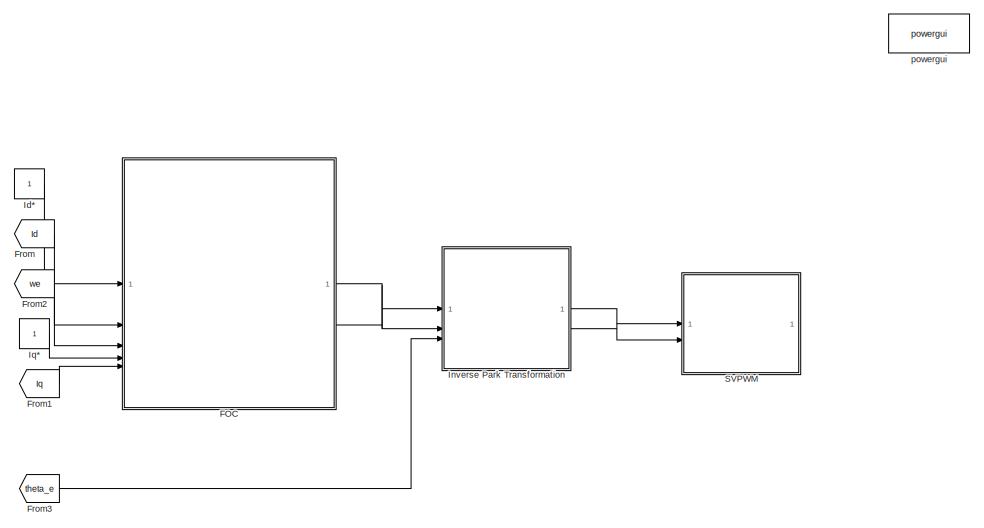
[diagram: root canvas - part 1/2, left side, full height]
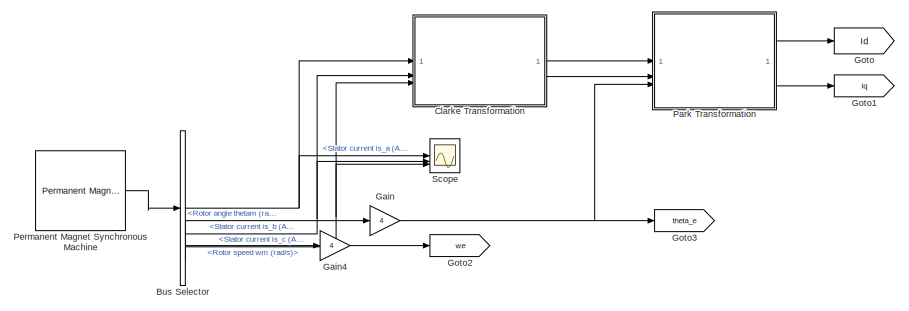
[diagram: root canvas - part 2/2, middle right region]
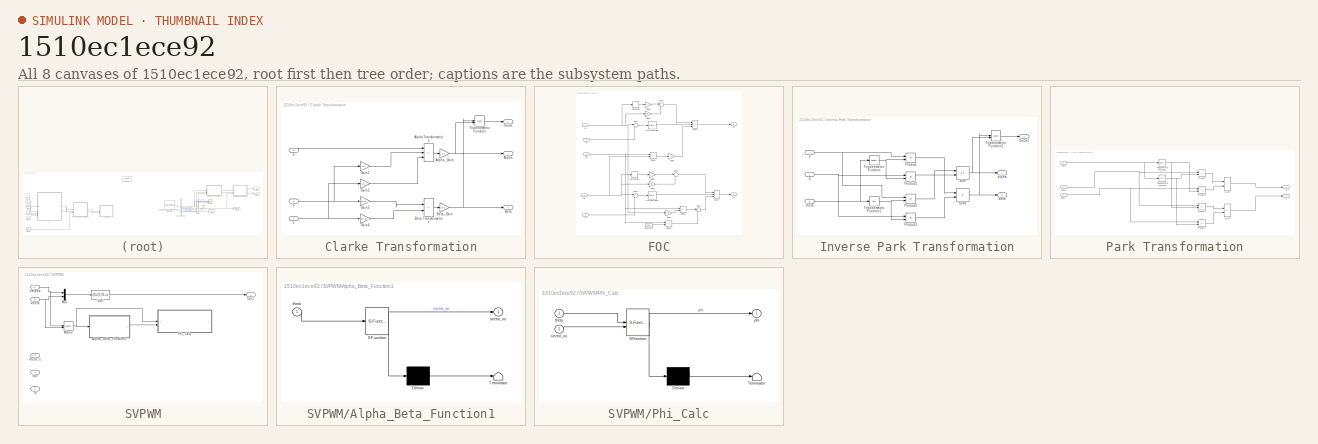
[diagram: thumbnail index - all 8 canvases of the model, root first then tree order]
MODEL slx_1510ec1ece92
KIND model
CONFIG AbsTol = auto
CONFIG EnableMultiTasking = off
CONFIG FixedStep = auto
CONFIG InitFcn = Ts=1/(12000);\nTs_Control=Ts;\nTs_Power=Ts;\nPulseDuration=5e-6;\nVrefpeak=399;\nVDC=800;\nR=1.4;\nL=1e-4;\nFreq = 120;\nRc= 0.00001;\nC=220e-6;\nLd = 473e-6;\nLq = 1155e-6;\nFpm = 0.1383;\nRs = 0.036;
CONFIG MaxStep = auto
CONFIG MinStep = auto
CONFIG RelTol = 1e-3
CONFIG SampleTimeConstraint = Unconstrained
CONFIG SolverName = VariableStepAuto
CONFIG StartTime = 0.0
CONFIG StopTime = 10.0
BLOCK [BusSelector] Bus Selector
  OutputSignals = Stator current is_a (A),Stator current is_b (A),Stator current is_c (A),Rotor angle thetam (rad),Rotor speed wm (rad/s),Electromagnetic torque Te (N*m)
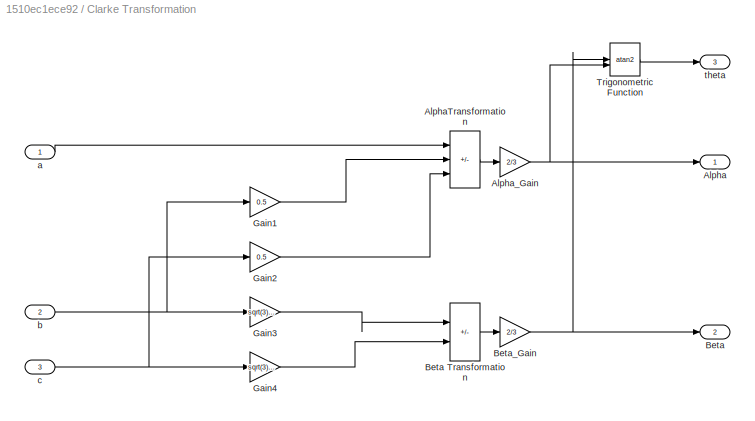
BLOCK [SubSystem] Clarke Transformation
BLOCK [Outport] Clarke Transformation/Alpha
BLOCK [Sum] Clarke Transformation/AlphaTransformation
  IconShape = rectangular
  Inputs = |+--
BLOCK [Gain] Clarke Transformation/Alpha_Gain
  Gain = 2/3
BLOCK [Outport] Clarke Transformation/Beta
  Port = 2
BLOCK [Sum] Clarke Transformation/Beta Transformation
  IconShape = rectangular
  Inputs = |+-
BLOCK [Gain] Clarke Transformation/Beta_Gain
  Gain = 2/3
BLOCK [Gain] Clarke Transformation/Gain1
  Gain = 0.5
BLOCK [Gain] Clarke Transformation/Gain2
  Gain = 0.5
BLOCK [Gain] Clarke Transformation/Gain3
  Gain = sqrt(3)/2
BLOCK [Gain] Clarke Transformation/Gain4
  Gain = sqrt(3)/2
BLOCK [Trigonometry] Clarke Transformation/Trigonometric Function
  Operator = atan2
BLOCK [Inport] Clarke Transformation/a
BLOCK [Inport] Clarke Transformation/b
  Port = 2
BLOCK [Inport] Clarke Transformation/c
  Port = 3
BLOCK [Outport] Clarke Transformation/theta
  Port = 3
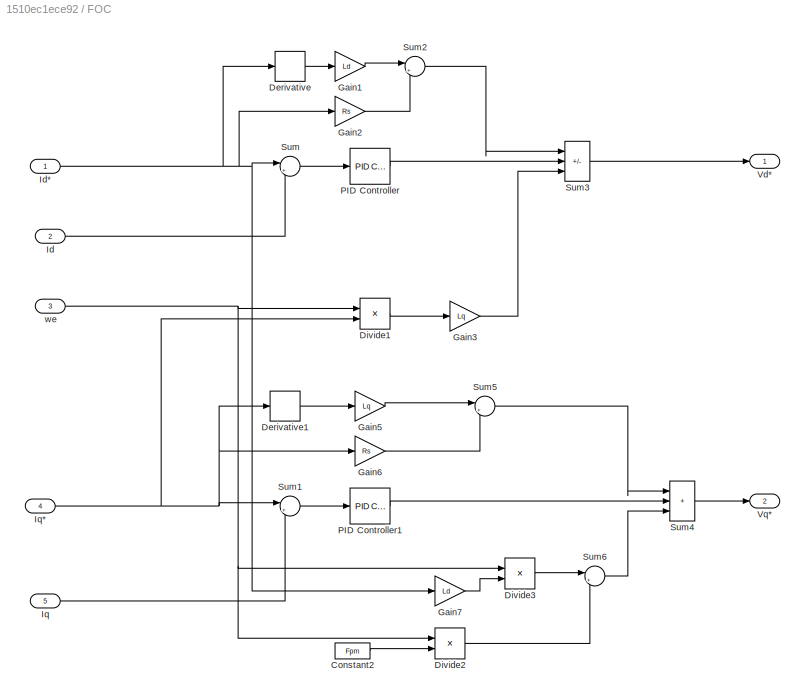
BLOCK [SubSystem] FOC
BLOCK [Constant] FOC/Constant2
  Value = Fpm
BLOCK [Derivative] FOC/Derivative
BLOCK [Derivative] FOC/Derivative1
BLOCK [Product] FOC/Divide1
  Inputs = **
BLOCK [Product] FOC/Divide2
  Inputs = **
BLOCK [Product] FOC/Divide3
  Inputs = **
BLOCK [Gain] FOC/Gain1
  Gain = Ld
BLOCK [Gain] FOC/Gain2
  Gain = Rs
BLOCK [Gain] FOC/Gain3
  Gain = Lq
BLOCK [Gain] FOC/Gain5
  Gain = Lq
BLOCK [Gain] FOC/Gain6
  Gain = Rs
BLOCK [Gain] FOC/Gain7
  Gain = Ld
BLOCK [Inport] FOC/Id
  Port = 2
BLOCK [Inport] FOC/Id*
BLOCK [Inport] FOC/Iq
  Port = 5
BLOCK [Inport] FOC/Iq*
  Port = 4
BLOCK [Reference] FOC/PID Controller  REF=slpidlib/PID Controller
  LibrarySourceBlock = simulink/Continuous/PID Controller
  SourceBlock = slpidlib/PID Controller
  SourceType = PID 1dof
BLOCK [Reference] FOC/PID Controller1  REF=slpidlib/PID Controller
  LibrarySourceBlock = simulink/Continuous/PID Controller
  SourceBlock = slpidlib/PID Controller
  SourceType = PID 1dof
BLOCK [Sum] FOC/Sum
  Inputs = |+-
BLOCK [Sum] FOC/Sum1
  Inputs = |+-
BLOCK [Sum] FOC/Sum2
  Inputs = |++
BLOCK [Sum] FOC/Sum3
  IconShape = rectangular
  Inputs = |++-
BLOCK [Sum] FOC/Sum4
  IconShape = rectangular
  Inputs = |+++
BLOCK [Sum] FOC/Sum5
  Inputs = |++
BLOCK [Sum] FOC/Sum6
  Inputs = |++
BLOCK [Outport] FOC/Vd*
BLOCK [Outport] FOC/Vq*
  Port = 2
BLOCK [Inport] FOC/we
  Port = 3
BLOCK [From] From
  GotoTag = Id
BLOCK [From] From1
  GotoTag = Iq
BLOCK [From] From2
  GotoTag = we
BLOCK [From] From3
  GotoTag = theta_e
BLOCK [Gain] Gain
  Gain = 4
BLOCK [Gain] Gain4
  Gain = 4
BLOCK [Goto] Goto
  GotoTag = Id
BLOCK [Goto] Goto1
  GotoTag = Iq
BLOCK [Goto] Goto2
  GotoTag = we
BLOCK [Goto] Goto3
  GotoTag = theta_e
BLOCK [Constant] Id*
BLOCK [SubSystem] Inverse Park Transformation
BLOCK [Product] Inverse Park Transformation/Product
BLOCK [Product] Inverse Park Transformation/Product1
BLOCK [Product] Inverse Park Transformation/Product2
BLOCK [Product] Inverse Park Transformation/Product3
BLOCK [Sum] Inverse Park Transformation/Sum
  IconShape = rectangular
  Inputs = |+-
BLOCK [Sum] Inverse Park Transformation/Sum1
  IconShape = rectangular
  Inputs = |++
BLOCK [Trigonometry] Inverse Park Transformation/Trigonometric Function
BLOCK [Trigonometry] Inverse Park Transformation/Trigonometric Function1
  Operator = cos
BLOCK [Trigonometry] Inverse Park Transformation/Trigonometric Function2
  Operator = atan2
BLOCK [Outport] Inverse Park Transformation/alpha
BLOCK [Outport] Inverse Park Transformation/beta
  Port = 2
BLOCK [Inport] Inverse Park Transformation/d
BLOCK [Inport] Inverse Park Transformation/q
  Port = 2
BLOCK [Inport] Inverse Park Transformation/theta
  Port = 3
BLOCK [Outport] Inverse Park Transformation/theta1
  Port = 3
BLOCK [Constant] Iq*
BLOCK [SubSystem] Park Transformation
BLOCK [Inport] Park Transformation/Alpha
BLOCK [Inport] Park Transformation/Beta
  Port = 2
BLOCK [Product] Park Transformation/Product
BLOCK [Product] Park Transformation/Product1
BLOCK [Product] Park Transformation/Product2
BLOCK [Product] Park Transformation/Product3
BLOCK [Trigonometry] Park Transformation/Trigonometric Function1
BLOCK [Trigonometry] Park Transformation/Trigonometric Function2
  Operator = cos
BLOCK [Outport] Park Transformation/d
BLOCK [Sum] Park Transformation/d_sum
  IconShape = rectangular
  Inputs = |++
BLOCK [Outport] Park Transformation/q
  Port = 2
BLOCK [Sum] Park Transformation/q_sum
  IconShape = rectangular
  Inputs = |-+
BLOCK [Inport] Park Transformation/theta
  Port = 3
BLOCK [Reference] Permanent Magnet Synchronous Machine  REF=spsPermanentMagnetSynchronousMachineLib/Permanent Magnet
Synchronous Machine
  SourceBlock = spsPermanentMagnetSynchronousMachineLib/Permanent Magnet\nSynchronous Machine
  SourceType = Permanent Magnet Synchronous Machine
BLOCK [SubSystem] SVPWM
BLOCK [SubSystem] SVPWM/Alpha_Beta_Function1
  ErrorFcn = Stateflow.Translate.translate
  PermitHierarchicalResolution = ExplicitOnly
  SFBlockType = MATLAB Function
  TreatAsAtomicUnit = on
BLOCK [Demux] SVPWM/Alpha_Beta_Function1/ Demux 
  Outputs = 1
BLOCK [S-Function] SVPWM/Alpha_Beta_Function1/ SFunction 
  EnableBusSupport = off
  FunctionName = sf_sfun
  PortCounts = [1 2]
  SFcnIsStateOwnerBlock = off
  SFunctionDeploymentMode = off
  Tag = Stateflow S-Function 2
BLOCK [Terminator] SVPWM/Alpha_Beta_Function1/ Terminator 
BLOCK [Outport] SVPWM/Alpha_Beta_Function1/sector_no
  VectorParamsAs1DForOutWhenUnconnected = off
BLOCK [Inport] SVPWM/Alpha_Beta_Function1/theta
BLOCK [Trigonometry] SVPWM/Atan2
  Operator = atan2
BLOCK [Mux] SVPWM/Mux
  DisplayOption = bar
  Inputs = 2
BLOCK [Outport] SVPWM/Out1
BLOCK [SubSystem] SVPWM/Phi_Calc
  ErrorFcn = Stateflow.Translate.translate
  PermitHierarchicalResolution = ExplicitOnly
  SFBlockType = MATLAB Function
  TreatAsAtomicUnit = on
BLOCK [Demux] SVPWM/Phi_Calc/ Demux 
  Outputs = 1
BLOCK [S-Function] SVPWM/Phi_Calc/ SFunction 
  EnableBusSupport = off
  FunctionName = sf_sfun
  PortCounts = [2 2]
  SFcnIsStateOwnerBlock = off
  SFunctionDeploymentMode = off
  Tag = Stateflow S-Function 3
BLOCK [Terminator] SVPWM/Phi_Calc/ Terminator 
BLOCK [Outport] SVPWM/Phi_Calc/phi
  VectorParamsAs1DForOutWhenUnconnected = off
BLOCK [Inport] SVPWM/Phi_Calc/sector_no
  Port = 2
BLOCK [Inport] SVPWM/Phi_Calc/theta
BLOCK [Inport] SVPWM/Ts
  Port = 5
BLOCK [Inport] SVPWM/Valpha
BLOCK [Inport] SVPWM/Vbeta
  Port = 2
BLOCK [Inport] SVPWM/Vdc
  Port = 4
BLOCK [Fcn] SVPWM/Vref
  Expr = sqrt(u(1)^2+u(2)^2)
BLOCK [Inport] SVPWM/theta_e
  Port = 3
BLOCK [Scope] Scope
  Floating = off
  NumInputPorts = 3
  ScopeSpecificationString = Simulink.scopes.TimeScopeBlockCfg('CurrentConfiguration', extmgr.ConfigurationSet(extmgr.Configuration('Core','General UI',true),extmgr.Configuration('Core','Source UI',true),extmgr.Configuration('Sources','WiredSimulink',true),extmgr.Configuration('Visuals','Time Domain',true),extmgr.Configuration('Tools','Plot Navigation',true),extmgr.Configuration('Tools','Measurements',true)),'Version','2022b'...<+1ch>
BLOCK [Reference] powergui  REF=spspowerguiLib/powergui
  Priority = 1
  SourceBlock = spspowerguiLib/powergui
  SourceType = PSB option menu block
NET Bus Selector:1 -> Clarke Transformation:1, Scope:1
NET Bus Selector:2 -> Clarke Transformation:2, Scope:2
NET Bus Selector:3 -> Clarke Transformation:3, Scope:3
LINE Bus Selector:4 -> Gain:1
LINE Bus Selector:5 -> Gain4:1
LINE Clarke Transformation/AlphaTransformation:1 -> Clarke Transformation/Alpha_Gain:1
NET Clarke Transformation/Alpha_Gain:1 -> Clarke Transformation/Alpha:1, Clarke Transformation/Trigonometric Function:2
LINE Clarke Transformation/Beta Transformation:1 -> Clarke Transformation/Beta_Gain:1
NET Clarke Transformation/Beta_Gain:1 -> Clarke Transformation/Beta:1, Clarke Transformation/Trigonometric Function:1
LINE Clarke Transformation/Gain1:1 -> Clarke Transformation/AlphaTransformation:2
LINE Clarke Transformation/Gain2:1 -> Clarke Transformation/AlphaTransformation:3
LINE Clarke Transformation/Gain3:1 -> Clarke Transformation/Beta Transformation:1
LINE Clarke Transformation/Gain4:1 -> Clarke Transformation/Beta Transformation:2
LINE Clarke Transformation/Trigonometric Function:1 -> Clarke Transformation/theta:1
LINE Clarke Transformation/a:1 -> Clarke Transformation/AlphaTransformation:1
NET Clarke Transformation/b:1 -> Clarke Transformation/Gain1:1, Clarke Transformation/Gain3:1
NET Clarke Transformation/c:1 -> Clarke Transformation/Gain2:1, Clarke Transformation/Gain4:1
LINE Clarke Transformation:1 -> Park Transformation:1
LINE Clarke Transformation:2 -> Park Transformation:2
LINE FOC/Constant2:1 -> FOC/Divide2:2
LINE FOC/Derivative1:1 -> FOC/Gain5:1
LINE FOC/Derivative:1 -> FOC/Gain1:1
LINE FOC/Divide1:1 -> FOC/Gain3:1
LINE FOC/Divide2:1 -> FOC/Sum6:2
LINE FOC/Divide3:1 -> FOC/Sum6:1
LINE FOC/Gain1:1 -> FOC/Sum2:1
LINE FOC/Gain2:1 -> FOC/Sum2:2
LINE FOC/Gain3:1 -> FOC/Sum3:3
LINE FOC/Gain5:1 -> FOC/Sum5:1
LINE FOC/Gain6:1 -> FOC/Sum5:2
LINE FOC/Gain7:1 -> FOC/Divide3:2
NET FOC/Id*:1 -> FOC/Derivative:1, FOC/Gain2:1, FOC/Gain7:1, FOC/Sum:1
LINE FOC/Id:1 -> FOC/Sum:2
NET FOC/Iq*:1 -> FOC/Derivative1:1, FOC/Divide1:2, FOC/Gain6:1, FOC/Sum1:1
LINE FOC/Iq:1 -> FOC/Sum1:2
LINE FOC/PID Controller1:1 -> FOC/Sum4:2
LINE FOC/PID Controller:1 -> FOC/Sum3:2
LINE FOC/Sum1:1 -> FOC/PID Controller1:1
LINE FOC/Sum2:1 -> FOC/Sum3:1
LINE FOC/Sum3:1 -> FOC/Vd*:1
LINE FOC/Sum4:1 -> FOC/Vq*:1
LINE FOC/Sum5:1 -> FOC/Sum4:1
LINE FOC/Sum6:1 -> FOC/Sum4:3
LINE FOC/Sum:1 -> FOC/PID Controller:1
NET FOC/we:1 -> FOC/Divide1:1, FOC/Divide2:1, FOC/Divide3:1
LINE FOC:1 -> Inverse Park Transformation:1
LINE FOC:2 -> Inverse Park Transformation:2
LINE From1:1 -> FOC:5
LINE From2:1 -> FOC:3
LINE From3:1 -> Inverse Park Transformation:3
LINE From:1 -> FOC:2
LINE Gain4:1 -> Goto2:1
NET Gain:1 -> Goto3:1, Park Transformation:3
LINE Id*:1 -> FOC:1
LINE Inverse Park Transformation/Product1:1 -> Inverse Park Transformation/Sum:2
LINE Inverse Park Transformation/Product2:1 -> Inverse Park Transformation/Sum:1
LINE Inverse Park Transformation/Product3:1 -> Inverse Park Transformation/Sum1:2
LINE Inverse Park Transformation/Product:1 -> Inverse Park Transformation/Sum1:1
NET Inverse Park Transformation/Sum1:1 -> Inverse Park Transformation/Trigonometric Function2:1, Inverse Park Transformation/beta:1
NET Inverse Park Transformation/Sum:1 -> Inverse Park Transformation/Trigonometric Function2:2, Inverse Park Transformation/alpha:1
NET Inverse Park Transformation/Trigonometric Function1:1 -> Inverse Park Transformation/Product2:2, Inverse Park Transformation/Product3:2
LINE Inverse Park Transformation/Trigonometric Function2:1 -> Inverse Park Transformation/theta1:1
NET Inverse Park Transformation/Trigonometric Function:1 -> Inverse Park Transformation/Product1:2, Inverse Park Transformation/Product:2
NET Inverse Park Transformation/d:1 -> Inverse Park Transformation/Product2:1, Inverse Park Transformation/Product:1
NET Inverse Park Transformation/q:1 -> Inverse Park Transformation/Product1:1, Inverse Park Transformation/Product3:1
NET Inverse Park Transformation/theta:1 -> Inverse Park Transformation/Trigonometric Function1:1, Inverse Park Transformation/Trigonometric Function:1
LINE Inverse Park Transformation:1 -> SVPWM:1
LINE Inverse Park Transformation:2 -> SVPWM:2
LINE Iq*:1 -> FOC:4
NET Park Transformation/Alpha:1 -> Park Transformation/Product2:1, Park Transformation/Product:1
NET Park Transformation/Beta:1 -> Park Transformation/Product1:1, Park Transformation/Product3:1
LINE Park Transformation/Product1:1 -> Park Transformation/d_sum:2
LINE Park Transformation/Product2:1 -> Park Transformation/q_sum:1
LINE Park Transformation/Product3:1 -> Park Transformation/q_sum:2
LINE Park Transformation/Product:1 -> Park Transformation/d_sum:1
NET Park Transformation/Trigonometric Function1:1 -> Park Transformation/Product1:2, Park Transformation/Product2:2
NET Park Transformation/Trigonometric Function2:1 -> Park Transformation/Product3:2, Park Transformation/Product:2
LINE Park Transformation/d_sum:1 -> Park Transformation/d:1
LINE Park Transformation/q_sum:1 -> Park Transformation/q:1
NET Park Transformation/theta:1 -> Park Transformation/Trigonometric Function1:1, Park Transformation/Trigonometric Function2:1
LINE Park Transformation:1 -> Goto:1
LINE Park Transformation:2 -> Goto1:1
LINE Permanent Magnet Synchronous Machine:1 -> Bus Selector:1
LINE SVPWM/Alpha_Beta_Function1:1 -> SVPWM/Phi_Calc:2
NET SVPWM/Atan2:1 -> SVPWM/Alpha_Beta_Function1:1, SVPWM/Phi_Calc:1
LINE SVPWM/Mux:1 -> SVPWM/Vref:1
NET SVPWM/Valpha:1 -> SVPWM/Atan2:1, SVPWM/Mux:1
NET SVPWM/Vbeta:1 -> SVPWM/Atan2:2, SVPWM/Mux:2
LINE SVPWM/Vref:1 -> SVPWM/Out1:1
note: NET lines group one-source signal fan-out (src -> all destinations, sorted); 1:1 wires keep LINE
CHART SVPWM/Alpha_Beta_Function1 states=1 transitions=1
  STATE_LABEL 'eML_blk_kernel()'
  STATE_LABEL 'SCRIPT:\nfunction sector_no = fcn(theta)\nsector_no=0;\nif (theta>=0) && (theta<pi/3)\n    sector_no=1;\nend\nif (theta>=pi/3) && (theta<2*pi/3)\n    sector_no=2;\nend\nif (theta>=2*pi/3) && (theta<pi)\n    sector_no=3;\nend\n\nif (theta>=-pi) && (theta<-2*pi/3)\n    sector_no=4;\nend\nif (theta>=-2*pi/3) && (theta<-pi/3)\n    sector_no=5;\nend\nif (theta>=-pi/3) && (theta<0)\n    sector_no=6;\nend\nend\n\n'
CHART SVPWM/Phi_Calc states=1 transitions=1
  STATE_LABEL 'eML_blk_kernel()'
  STATE_LABEL 'SCRIPT:\n%Carry the reference vector to the first sector according to the angle of\n%the vector. This makes easier to control.\n\nfunction phi = fcn(theta, sector_no)\nphi=0;\nif (sector_no==1)\n    phi=theta;\nend\n\nif (sector_no==2)\n    phi=theta-pi/3;\nend\n\nif (sector_no==3)\n    phi=theta-2*pi/3;\nend\n\nif (sector_no==6)\n    phi=theta+pi/3;\nend\n\nif (sector_no==5)\n    phi=theta+2*pi/3;\nend\n\nif (sector_no==4...<+29ch>'
CHART  states=0 transitions=0
CHART  states=0 transitions=0
